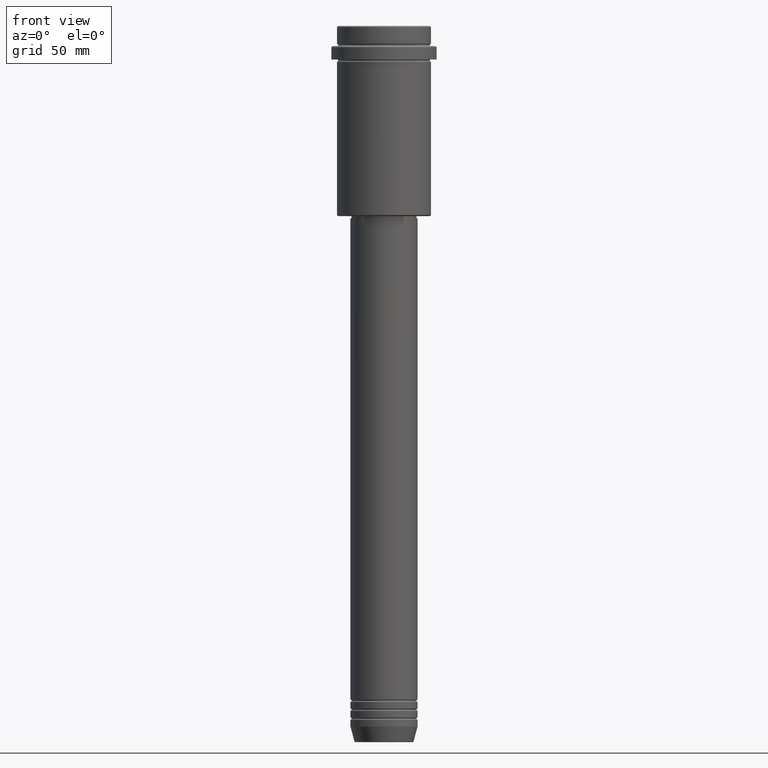
[diagram: clean part render]
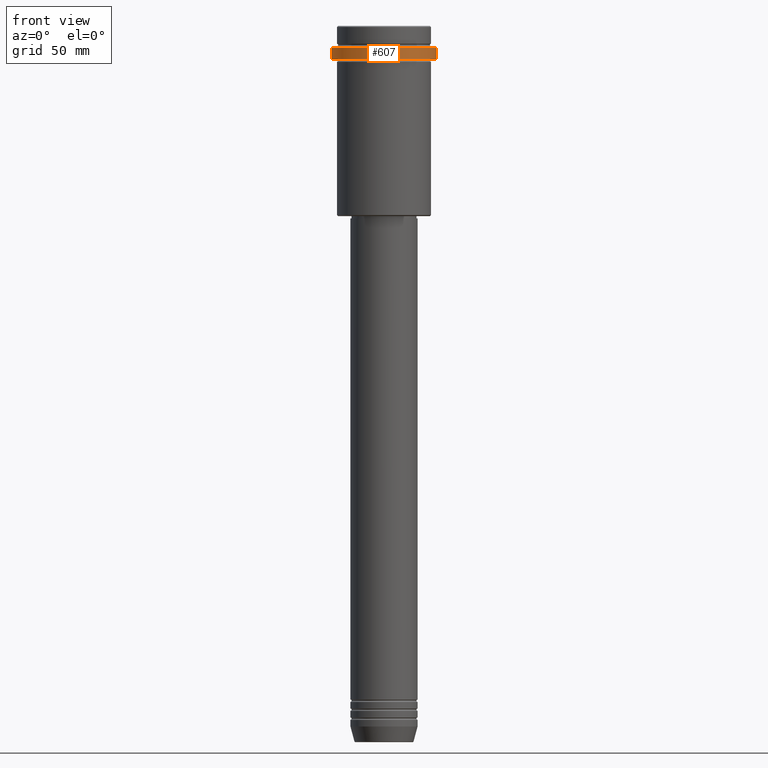
[diagram: same view with one face highlighted and labeled with its STEP entity id]
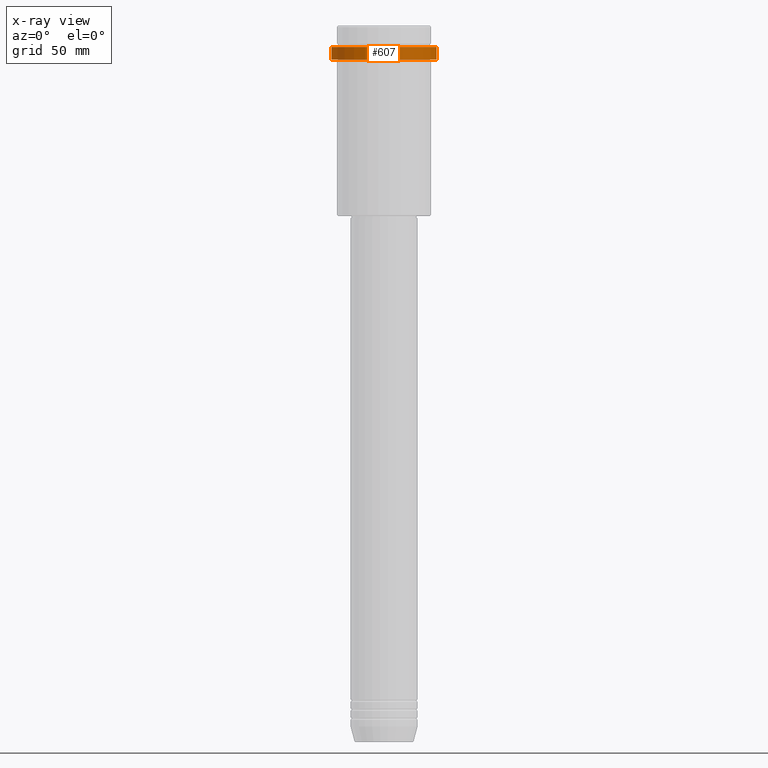
[diagram: x-ray of the same camera — body ghosted, the highlighted face saturated]
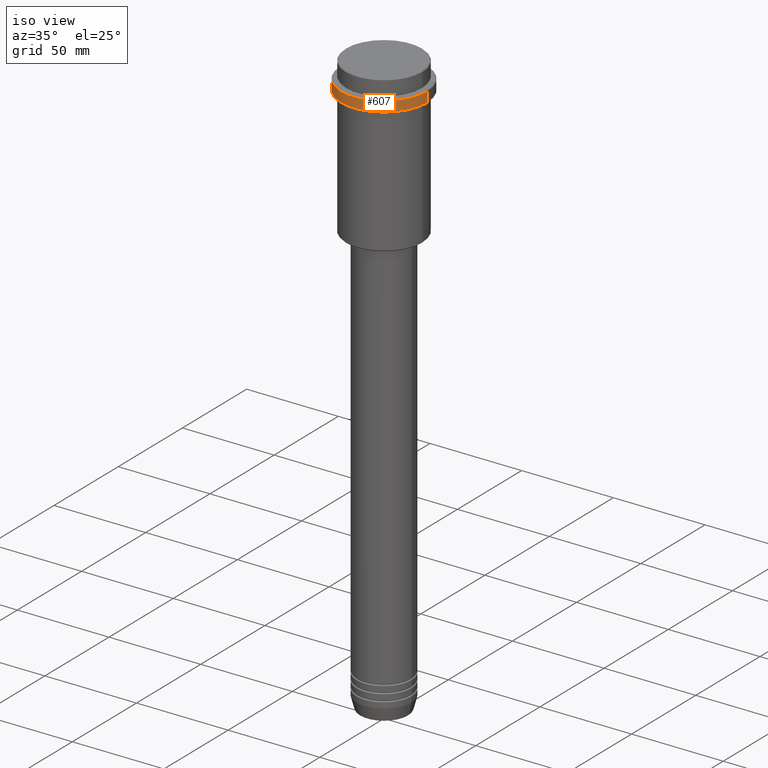
[diagram: same view with one face highlighted and labeled with its STEP entity id]
A machine part, front view. The second image highlights one B-rep face of the part: STEP entity #607.
The next image is the same camera in x-ray: the body ghosted, the highlighted face saturated — about 0% of this face is hidden behind the body in this view.
A second angle (iso view) of the same face is appended — the face is thin or edge-on in the first view.
In plain terms, the highlighted cylindrical surface (partial cylindrical patch) has radius 23.5 mm, axis along (-0, -0, 1).
Its self-contained STEP definition (entity closure, byte-faithful):
#114 = CARTESIAN_POINT ( 'NONE',  ( -23.50000000000000711, 2.877919977996281109E-15, -15.00000000000000178 ) ) ;
#224 = ORIENTED_EDGE ( 'NONE', *, *, #917, .T. ) ;
#293 = CYLINDRICAL_SURFACE ( 'NONE', #957, 23.50000000000000000 ) ;
#317 = VERTEX_POINT ( 'NONE', #114 ) ;
#330 = CARTESIAN_POINT ( 'NONE',  ( 0.000000000000000000, 0.000000000000000000, -9.499999999999973355 ) ) ;
#419 = CARTESIAN_POINT ( 'NONE',  ( -23.50000000000000000, 2.877919977996280320E-15, 0.000000000000000000 ) ) ;
#430 = DIRECTION ( 'NONE',  ( -0.000000000000000000, -0.000000000000000000, 1.000000000000000000 ) ) ;
#466 = AXIS2_PLACEMENT_3D ( 'NONE', #1080, #430, #677 ) ;
#517 = CIRCLE ( 'NONE', #466, 23.50000000000000355 ) ;
#524 = CARTESIAN_POINT ( 'NONE',  ( 23.50000000000000000, 0.000000000000000000, 0.000000000000000000 ) ) ;
#546 = ORIENTED_EDGE ( 'NONE', *, *, #972, .T. ) ;
#571 = CARTESIAN_POINT ( 'NONE',  ( 23.50000000000000355, 0.000000000000000000, -15.00000000000000178 ) ) ;
#607 = ADVANCED_FACE ( 'NONE', ( #737 ), #293, .T. ) ;
#631 = ORIENTED_EDGE ( 'NONE', *, *, #1119, .T. ) ;
#666 = CIRCLE ( 'NONE', #1200, 23.50000000000000000 ) ;
#677 = DIRECTION ( 'NONE',  ( 1.000000000000000000, 0.000000000000000000, 0.000000000000000000 ) ) ;
#693 = VERTEX_POINT ( 'NONE', #571 ) ;
#737 = FACE_OUTER_BOUND ( 'NONE', #1270, .T. ) ;
#823 = DIRECTION ( 'NONE',  ( 0.000000000000000000, 0.000000000000000000, -1.000000000000000000 ) ) ;
#826 = DIRECTION ( 'NONE',  ( 1.000000000000000000, 0.000000000000000000, 0.000000000000000000 ) ) ;
#857 = LINE ( 'NONE', #419, #938 ) ;
#917 = EDGE_CURVE ( 'NONE', #693, #1291, #1170, .T. ) ;
#923 = ORIENTED_EDGE ( 'NONE', *, *, #1101, .F. ) ;
#938 = VECTOR ( 'NONE', #1405, 1000.000000000000000 ) ;
#957 = AXIS2_PLACEMENT_3D ( 'NONE', #1160, #1065, #826 ) ;
#971 = DIRECTION ( 'NONE',  ( -0.000000000000000000, -0.000000000000000000, 1.000000000000000000 ) ) ;
#972 = EDGE_CURVE ( 'NONE', #1291, #1002, #666, .T. ) ;
#973 = CARTESIAN_POINT ( 'NONE',  ( 23.50000000000000000, 0.000000000000000000, -9.499999999999973355 ) ) ;
#1002 = VERTEX_POINT ( 'NONE', #1042 ) ;
#1042 = CARTESIAN_POINT ( 'NONE',  ( -23.50000000000000000, 2.877919977996280320E-15, -9.499999999999973355 ) ) ;
#1065 = DIRECTION ( 'NONE',  ( -0.000000000000000000, -0.000000000000000000, 1.000000000000000000 ) ) ;
#1080 = CARTESIAN_POINT ( 'NONE',  ( 0.000000000000000000, 0.000000000000000000, -15.00000000000000178 ) ) ;
#1101 = EDGE_CURVE ( 'NONE', #317, #1002, #857, .T. ) ;
#1119 = EDGE_CURVE ( 'NONE', #317, #693, #517, .T. ) ;
#1146 = VECTOR ( 'NONE', #971, 1000.000000000000000 ) ;
#1160 = CARTESIAN_POINT ( 'NONE',  ( 0.000000000000000000, 0.000000000000000000, 0.000000000000000000 ) ) ;
#1170 = LINE ( 'NONE', #524, #1146 ) ;
#1200 = AXIS2_PLACEMENT_3D ( 'NONE', #330, #823, #1249 ) ;
#1249 = DIRECTION ( 'NONE',  ( 1.000000000000000000, 0.000000000000000000, 0.000000000000000000 ) ) ;
#1270 = EDGE_LOOP ( 'NONE', ( #923, #631, #224, #546 ) ) ;
#1291 = VERTEX_POINT ( 'NONE', #973 ) ;
#1405 = DIRECTION ( 'NONE',  ( -0.000000000000000000, -0.000000000000000000, 1.000000000000000000 ) ) ;